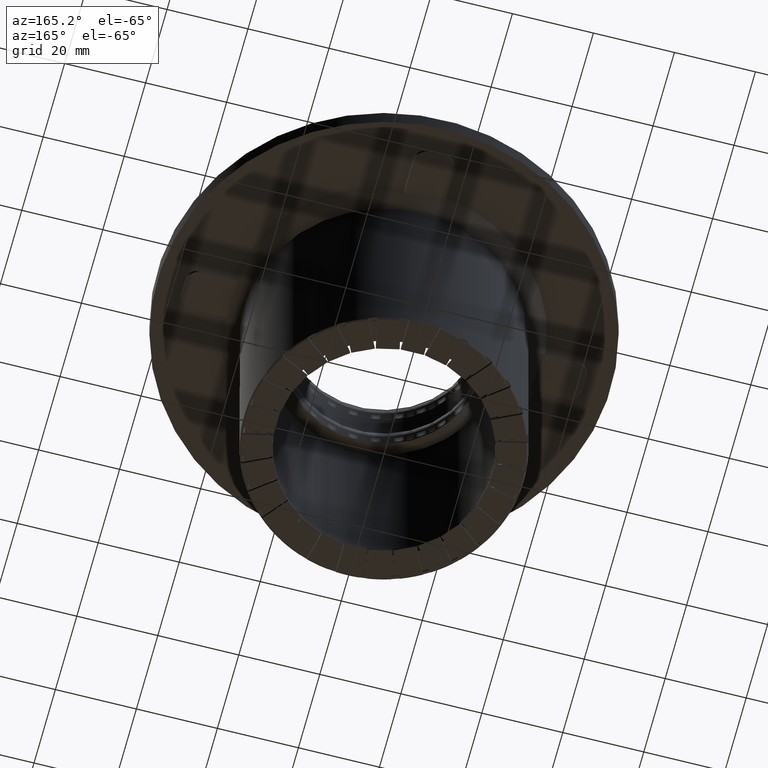
[diagram: clean part render]
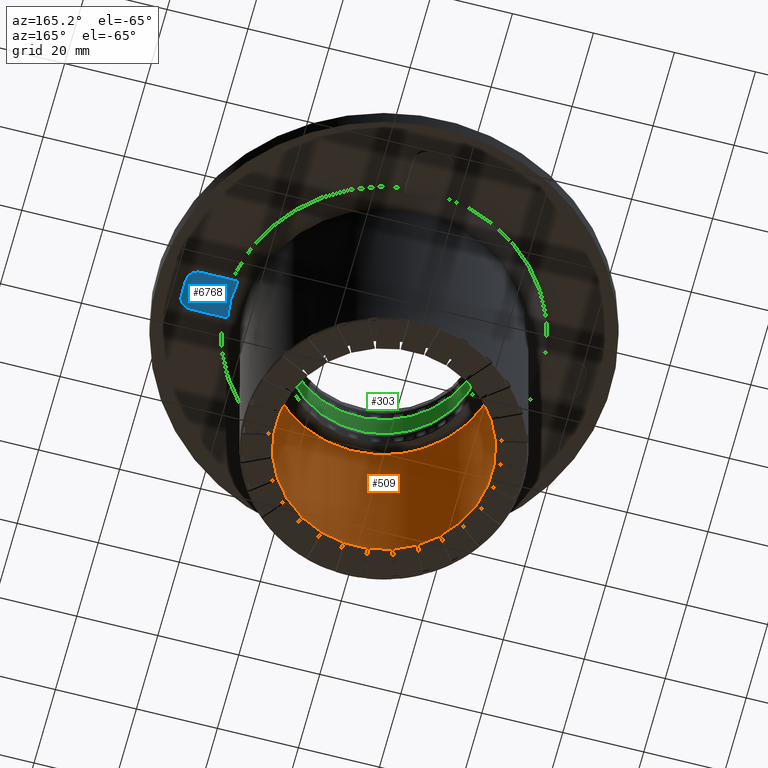
[diagram: same view with three faces highlighted in distinct colors, each labeled with its STEP entity id]
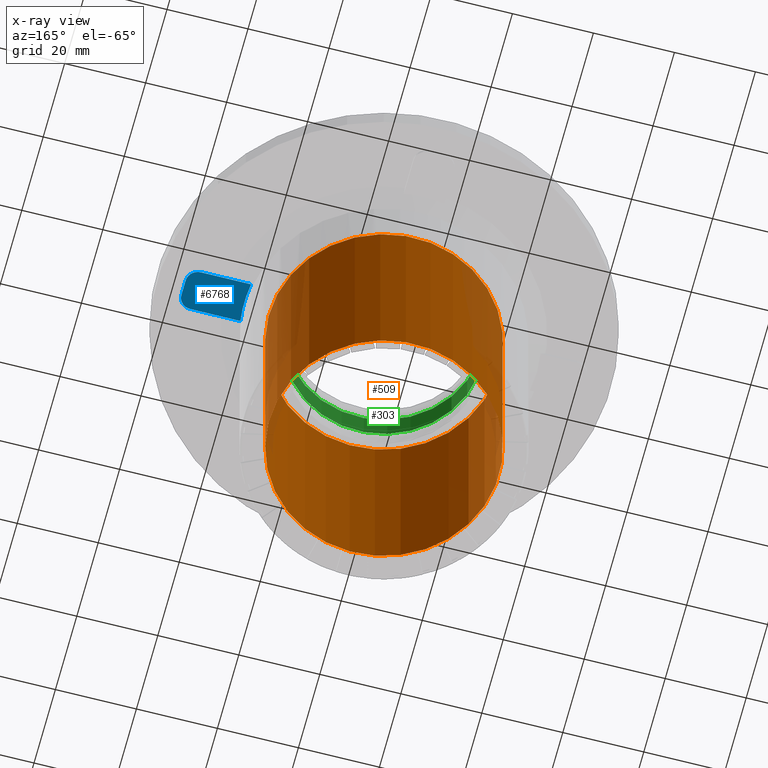
[diagram: x-ray of the same camera — body ghosted, the three highlighted faces saturated]
A machine part, auxiliary view with three faces highlighted in distinct colors.
The next image is the same camera in x-ray (body ghosted, the three faces saturated) — at least one of them is partly hidden behind the body in this view.
Their STEP definitions:

[orange] entity #509 — the highlighted cylindrical surface (bore or boss wall) has radius 28.4 mm, axis along (0, -0, 1).
#482=CARTESIAN_POINT('',(8.881784E-015,-1.395672E-016,-4.440892E-015));
#483=DIRECTION('',(6.938894E-018,-5.777790E-034,1.0));
#484=DIRECTION('',(-0.999821469340045,0.018895222854269,6.937655E-018));
#485=AXIS2_PLACEMENT_3D('',#482,#483,#484);
#486=CYLINDRICAL_SURFACE('',#485,28.399999999999999);
#487=CARTESIAN_POINT('',(28.394929729257296,-0.536624329061236,60.000000000000014));
#488=VERTEX_POINT('',#487);
#489=CARTESIAN_POINT('',(9.298118E-015,-1.395672E-016,60.000000000000014));
#490=DIRECTION('',(-6.936417E-018,1.310885E-019,-1.0));
#491=DIRECTION('',(-0.999821469340045,0.018895222854269,6.937655E-018));
#492=AXIS2_PLACEMENT_3D('',#489,#490,#491);
#493=CIRCLE('',#492,28.399999999999995);
#494=EDGE_CURVE('',#488,#488,#493,.T.);
#495=ORIENTED_EDGE('',*,*,#494,.F.);
#496=EDGE_LOOP('',(#495));
#497=FACE_OUTER_BOUND('',#496,.T.);
#498=CARTESIAN_POINT('',(28.394929729257296,-0.536624329061236,-4.637922E-015));
#499=VERTEX_POINT('',#498);
#500=CARTESIAN_POINT('',(8.881784E-015,-1.395672E-016,-4.440892E-015));
#501=DIRECTION('',(6.936417E-018,-1.310885E-019,1.0));
#502=DIRECTION('',(-0.999821469340045,0.018895222854269,6.937655E-018));
#503=AXIS2_PLACEMENT_3D('',#500,#501,#502);
#504=CIRCLE('',#503,28.399999999999995);
#505=EDGE_CURVE('',#499,#499,#504,.T.);
#506=ORIENTED_EDGE('',*,*,#505,.F.);
#507=EDGE_LOOP('',(#506));
#508=FACE_BOUND('',#507,.T.);
#509=ADVANCED_FACE('',(#497,#508),#486,.F.);

[blue] entity #6768 — the highlighted planar face has unit normal (0, 0, 1).
#1281=CARTESIAN_POINT('',(34.13575837739657,-5.000000000000004,63.499999999999979));
#1282=VERTEX_POINT('',#1281);
#1402=CARTESIAN_POINT('',(34.13575837739657,4.999999999999996,63.499999999999979));
#1403=VERTEX_POINT('',#1402);
#1410=CARTESIAN_POINT('',(0.0,0.0,63.499999999999979));
#1411=DIRECTION('',(0.0,0.0,-1.0));
#1412=DIRECTION('',(-1.0,0.0,0.0));
#1413=AXIS2_PLACEMENT_3D('',#1410,#1411,#1412);
#1414=CIRCLE('',#1413,34.5);
#1415=EDGE_CURVE('',#1403,#1282,#1414,.T.);
#6610=CARTESIAN_POINT('',(46.5,-5.000000000000005,63.499999999999979));
#6611=VERTEX_POINT('',#6610);
#6612=CARTESIAN_POINT('',(49.499999999999993,-2.000000000000005,63.499999999999979));
#6613=VERTEX_POINT('',#6612);
#6614=CARTESIAN_POINT('',(46.5,-2.000000000000005,63.5));
#6615=DIRECTION('',(0.0,0.0,1.0));
#6616=DIRECTION('',(0.0,-1.0,0.0));
#6617=AXIS2_PLACEMENT_3D('',#6614,#6615,#6616);
#6618=CIRCLE('',#6617,2.999999999999991);
#6619=EDGE_CURVE('',#6611,#6613,#6618,.T.);
#6652=CARTESIAN_POINT('',(49.499999999999993,1.999999999999994,63.499999999999979));
#6653=VERTEX_POINT('',#6652);
#6654=CARTESIAN_POINT('',(49.499999999999993,-2.000000000000005,63.5));
#6655=DIRECTION('',(0.0,1.0,0.0));
#6656=VECTOR('',#6655,3.999999999999999);
#6657=LINE('',#6654,#6656);
#6658=EDGE_CURVE('',#6613,#6653,#6657,.T.);
#6683=CARTESIAN_POINT('',(46.5,4.999999999999995,63.499999999999979));
#6684=VERTEX_POINT('',#6683);
#6685=CARTESIAN_POINT('',(46.5,1.999999999999994,63.5));
#6686=DIRECTION('',(0.0,0.0,1.0));
#6687=DIRECTION('',(1.0,0.0,0.0));
#6688=AXIS2_PLACEMENT_3D('',#6685,#6686,#6687);
#6689=CIRCLE('',#6688,3.000000000000002);
#6690=EDGE_CURVE('',#6653,#6684,#6689,.T.);
#6716=CARTESIAN_POINT('',(46.5,4.999999999999995,63.5));
#6717=DIRECTION('',(-1.0,0.0,0.0));
#6718=VECTOR('',#6717,12.36424162260343);
#6719=LINE('',#6716,#6718);
#6720=EDGE_CURVE('',#6684,#1403,#6719,.T.);
#6738=CARTESIAN_POINT('',(34.13575837739657,-5.000000000000004,63.5));
#6739=DIRECTION('',(1.0,0.0,0.0));
#6740=VECTOR('',#6739,12.36424162260343);
#6741=LINE('',#6738,#6740);
#6742=EDGE_CURVE('',#1282,#6611,#6741,.T.);
#6755=CARTESIAN_POINT('',(41.412775178141032,-2.264455E-015,63.499999999999979));
#6756=DIRECTION('',(0.0,0.0,1.0));
#6757=DIRECTION('',(0.0,-1.0,0.0));
#6758=AXIS2_PLACEMENT_3D('',#6755,#6756,#6757);
#6759=PLANE('',#6758);
#6760=ORIENTED_EDGE('',*,*,#6619,.F.);
#6761=ORIENTED_EDGE('',*,*,#6742,.F.);
#6762=ORIENTED_EDGE('',*,*,#1415,.F.);
#6763=ORIENTED_EDGE('',*,*,#6720,.F.);
#6764=ORIENTED_EDGE('',*,*,#6690,.F.);
#6765=ORIENTED_EDGE('',*,*,#6658,.F.);
#6766=EDGE_LOOP('',(#6760,#6761,#6762,#6763,#6764,#6765));
#6767=FACE_OUTER_BOUND('',#6766,.T.);
#6768=ADVANCED_FACE('',(#6767),#6759,.F.);

[green] entity #303 — the highlighted cylindrical surface (bore or boss wall) has radius 24.15 mm, axis along (-0, 0, -1).
#205=CARTESIAN_POINT('',(24.150000000000009,-2.888640E-014,67.799999999999983));
#206=VERTEX_POINT('',#205);
#224=CARTESIAN_POINT('',(6.199135E-015,-2.888640E-014,67.799999999999983));
#225=DIRECTION('',(0.0,0.0,1.0));
#226=DIRECTION('',(1.0,0.0,0.0));
#227=AXIS2_PLACEMENT_3D('',#224,#225,#226);
#228=CIRCLE('',#227,24.149999999999999);
#229=EDGE_CURVE('',#206,#206,#228,.T.);
#245=CARTESIAN_POINT('',(24.150000000000009,-2.836960E-014,59.799999999999983));
#246=VERTEX_POINT('',#245);
#254=CARTESIAN_POINT('',(5.235418E-015,-2.836960E-014,59.799999999999983));
#255=DIRECTION('',(0.0,0.0,-1.0));
#256=DIRECTION('',(1.0,0.0,0.0));
#257=AXIS2_PLACEMENT_3D('',#254,#255,#256);
#258=CIRCLE('',#257,24.149999999999999);
#259=EDGE_CURVE('',#246,#246,#258,.T.);
#292=CARTESIAN_POINT('',(5.717277E-015,-2.862800E-014,63.79999999999999));
#293=DIRECTION('',(-1.204647E-016,6.460021E-017,-1.0));
#294=DIRECTION('',(1.0,0.0,0.0));
#295=AXIS2_PLACEMENT_3D('',#292,#293,#294);
#296=CYLINDRICAL_SURFACE('',#295,24.149999999999999);
#297=ORIENTED_EDGE('',*,*,#259,.T.);
#298=EDGE_LOOP('',(#297));
#299=FACE_OUTER_BOUND('',#298,.T.);
#300=ORIENTED_EDGE('',*,*,#229,.T.);
#301=EDGE_LOOP('',(#300));
#302=FACE_BOUND('',#301,.T.);
#303=ADVANCED_FACE('',(#299,#302),#296,.F.);